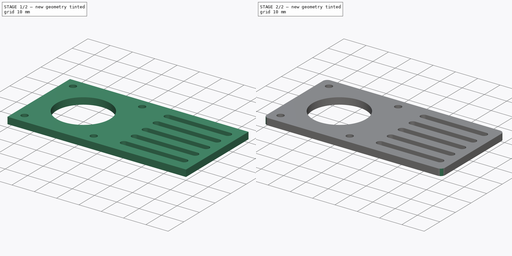
[diagram: build sequence overview — one tinted view per stage of 2, left to right]
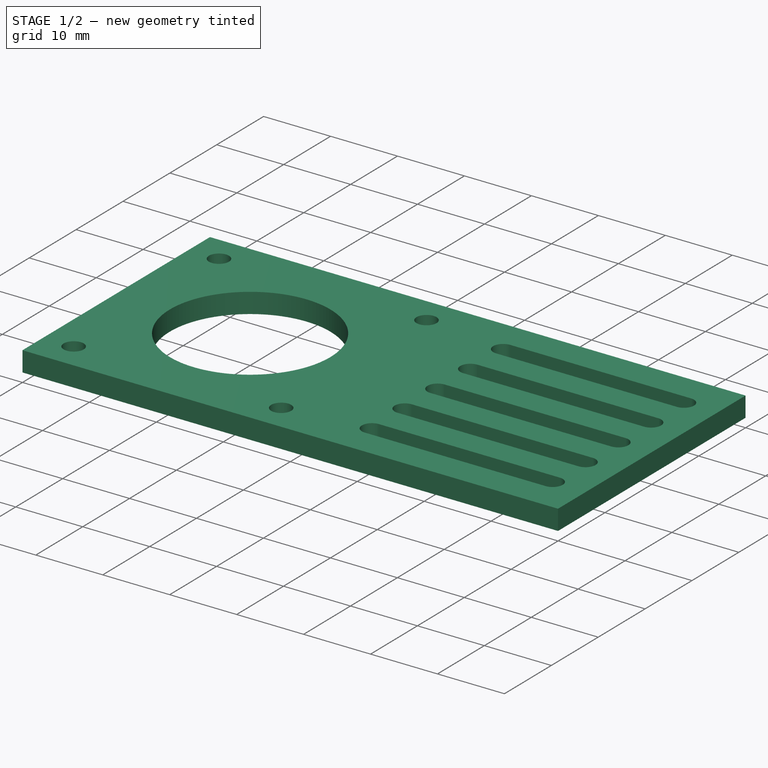
[diagram: stage 1 of 2 — iso view after this stage's code; geometry added in this stage tinted green]
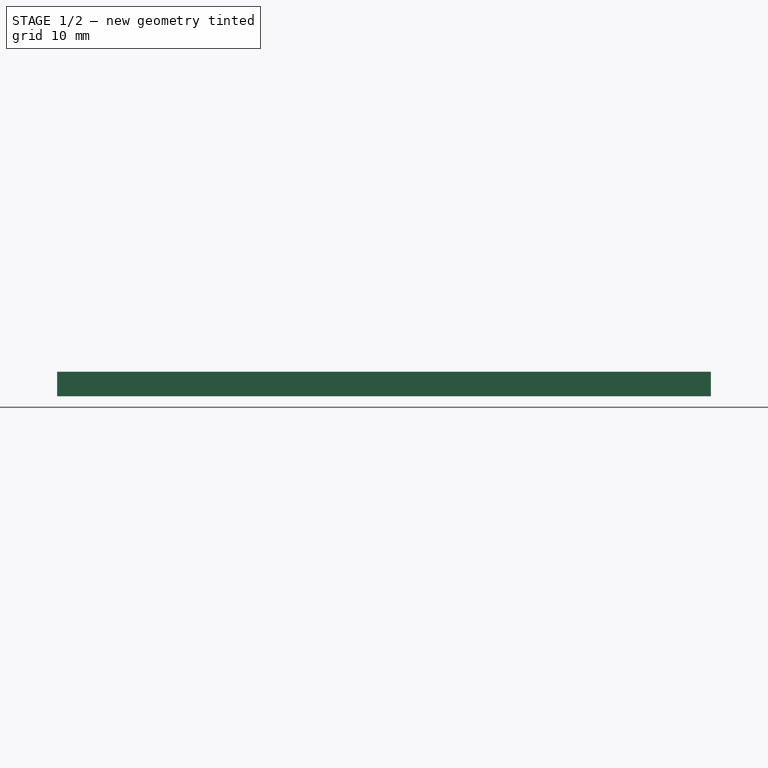
[diagram: stage 1 of 2 — front view after this stage's code; geometry added in this stage tinted green]
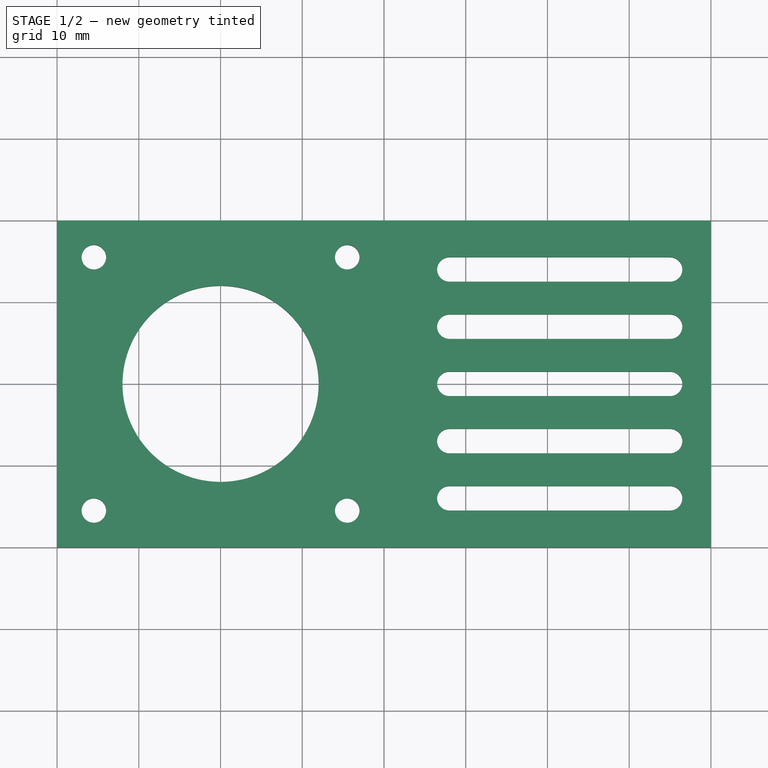
[diagram: stage 1 of 2 — top view after this stage's code; geometry added in this stage tinted green]
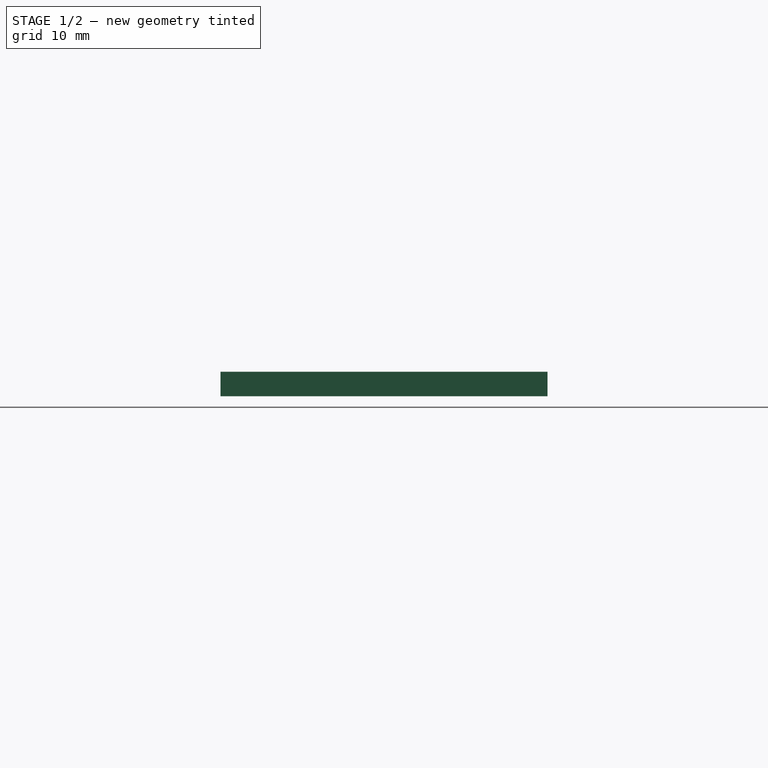
[diagram: stage 1 of 2 — right view after this stage's code; geometry added in this stage tinted green]
FCSTD DOCUMENT  (FreeCAD 1.0R39319 (Git))
Label: Nema17-Mount
License: All rights reserved
LicenseURL: http://en.wikipedia.org/wiki/All_rights_reserved
objects: Sketcher::SketchObject×1, PartDesign::Pad×1, PartDesign::Fillet×1, PartDesign::Body×1
note: 9 computed .brp shape members not serialized (recipe doc carries the construction recipe); baked Part::Feature solids carry a one-line shape summary decoded from their .brp

FEATURE [Sketcher::SketchObject] Sketch
  ArcFitTolerance = 0
  AttachmentSupport = -> [XY_Plane]
  FullyConstrained = true
  MakeInternals = false
  MapMode = 5
  sketch-geometry (29):
    g0: LineSegment StartX=-40 StartY=20 StartZ=0 EndX=40 EndY=20 EndZ=0
    g1: LineSegment StartX=40 StartY=20 StartZ=0 EndX=40 EndY=-20 EndZ=0
    g2: LineSegment StartX=40 StartY=-20 StartZ=0 EndX=-40 EndY=-20 EndZ=0
    g3: LineSegment StartX=-40 StartY=-20 StartZ=0 EndX=-40 EndY=20 EndZ=0
    g4: Circle CenterX=-20 CenterY=0 CenterZ=0 NormalX=0 NormalY=0 NormalZ=1 AngleXU=0 Radius=12
    g5: Circle CenterX=-35.5 CenterY=15.5 CenterZ=0 NormalX=0 NormalY=0 NormalZ=1 AngleXU=0 Radius=1.5
    g6: Circle CenterX=-4.5 CenterY=15.5 CenterZ=0 NormalX=0 NormalY=0 NormalZ=1 AngleXU=0 Radius=1.5
    g7: Circle CenterX=-35.5 CenterY=-15.5 CenterZ=0 NormalX=0 NormalY=0 NormalZ=1 AngleXU=0 Radius=1.5
    g8: Circle CenterX=-4.5 CenterY=-15.5 CenterZ=0 NormalX=0 NormalY=0 NormalZ=1 AngleXU=0 Radius=1.5
    g9: ArcOfCircle CenterX=8 CenterY=0 CenterZ=0 NormalX=0 NormalY=0 NormalZ=1 AngleXU=0 Radius=1.5 StartAngle=1.5708 EndAngle=4.71239
    g10: ArcOfCircle CenterX=35 CenterY=0 CenterZ=0 NormalX=0 NormalY=0 NormalZ=1 AngleXU=0 Radius=1.5 StartAngle=4.71239 EndAngle=7.85398
    g11: LineSegment StartX=8 StartY=-1.5 StartZ=0 EndX=35 EndY=-1.5 EndZ=0
    g12: LineSegment StartX=8 StartY=1.5 StartZ=0 EndX=35 EndY=1.5 EndZ=0
    g13: ArcOfCircle CenterX=8 CenterY=7 CenterZ=0 NormalX=0 NormalY=0 NormalZ=1 AngleXU=0 Radius=1.5 StartAngle=1.5708 EndAngle=4.71239
    g14: ArcOfCircle CenterX=35 CenterY=7 CenterZ=0 NormalX=0 NormalY=0 NormalZ=1 AngleXU=0 Radius=1.5 StartAngle=4.71239 EndAngle=7.85398
    g15: LineSegment StartX=8 StartY=5.5 StartZ=0 EndX=35 EndY=5.5 EndZ=0
    g16: LineSegment StartX=8 StartY=8.5 StartZ=0 EndX=35 EndY=8.5 EndZ=0
    g17: ArcOfCircle CenterX=8 CenterY=14 CenterZ=0 NormalX=0 NormalY=0 NormalZ=1 AngleXU=0 Radius=1.5 StartAngle=1.5708 EndAngle=4.71239
    g18: ArcOfCircle CenterX=35 CenterY=14 CenterZ=0 NormalX=0 NormalY=0 NormalZ=1 AngleXU=0 Radius=1.5 StartAngle=4.71239 EndAngle=7.85398
    g19: LineSegment StartX=8 StartY=12.5 StartZ=0 EndX=35 EndY=12.5 EndZ=0
    g20: LineSegment StartX=8 StartY=15.5 StartZ=0 EndX=35 EndY=15.5 EndZ=0
    g21: ArcOfCircle CenterX=8 CenterY=-7 CenterZ=0 NormalX=0 NormalY=0 NormalZ=1 AngleXU=0 Radius=1.5 StartAngle=1.5708 EndAngle=4.71239
    g22: ArcOfCircle CenterX=35 CenterY=-7 CenterZ=0 NormalX=0 NormalY=0 NormalZ=1 AngleXU=0 Radius=1.5 StartAngle=4.71239 EndAngle=7.85398
    g23: LineSegment StartX=8 StartY=-8.5 StartZ=0 EndX=35 EndY=-8.5 EndZ=0
    g24: LineSegment StartX=8 StartY=-5.5 StartZ=0 EndX=35 EndY=-5.5 EndZ=0
    g25: ArcOfCircle CenterX=8 CenterY=-14 CenterZ=0 NormalX=0 NormalY=0 NormalZ=1 AngleXU=0 Radius=1.5 StartAngle=1.5708 EndAngle=4.71239
    g26: ArcOfCircle CenterX=35 CenterY=-14 CenterZ=0 NormalX=0 NormalY=0 NormalZ=1 AngleXU=0 Radius=1.5 StartAngle=4.71239 EndAngle=7.85398
    g27: LineSegment StartX=8 StartY=-15.5 StartZ=0 EndX=35 EndY=-15.5 EndZ=0
    g28: LineSegment StartX=8 StartY=-12.5 StartZ=0 EndX=35 EndY=-12.5 EndZ=0
  constraints (73):
    c: Coincident(g0,g1)
    c: Coincident(g1,g2)
    c: Coincident(g2,g3)
    c: Coincident(g3,g0)
    c: Horizontal(g2)
    c: Vertical(g1)
    c: Symmetric(g0,g0,g-2)
    c: Symmetric(g0,g2,g-1)
    c: PointOnObject(g4,g-1)
    c: Diameter(g4) = 24
    c: Equal(g6,g5)
    c: Equal(g5,g7)
    c: Equal(g7,g8)
    c: Symmetric(g5,g7,g-1)
    c: Symmetric(g6,g8,g-1)
    c: DistanceX(g5,g6) = 31
    c: Diameter(g6) = 3
    c: DistanceY(g7,g5) = 31
    c: DistanceY(g8,g6) = 31
    c: DistanceY(g3,g3) = 40
    c: DistanceX(g0,g0) = 80
    c: DistanceX(g4,g-1) = 20
    c: DistanceX(g4,g8) = 15.5
    c: Tangent(g9,g12) = 1.5708
    c: Tangent(g9,g11) = -1.5708
    c: Tangent(g11,g10) = -1.5708
    c: Tangent(g12,g10) = 1.5708
    c: Horizontal(g11)
    c: Equal(g9,g10)
    c: Diameter(g10) = 3
    c: PointOnObject(g10,g-1)
    c: DistanceX(g9) = 8
    c: DistanceX(g10) = 35
    c: Tangent(g13,g16) = 1.5708
    c: Tangent(g13,g15) = -1.5708
    c: Tangent(g15,g14) = -1.5708
    c: Tangent(g16,g14) = 1.5708
    c: Horizontal(g15)
    c: Equal(g13,g14)
    c: Equal(g10,g14) = 3
    c: Tangent(g17,g20) = 1.5708
    c: Tangent(g17,g19) = -1.5708
    c: Tangent(g19,g18) = -1.5708
    c: Tangent(g20,g18) = 1.5708
    c: Horizontal(g19)
    c: Equal(g17,g18)
    c: Equal(g10,g18) = 3
    c: DistanceY(g9,g13) = 7
    c: DistanceY(g13,g17) = 7
    c: DistanceX(g13) = 8
    c: DistanceX(g17) = 8
    c: Tangent(g21,g24) = 1.5708
    c: Tangent(g21,g23) = -1.5708
    c: Tangent(g23,g22) = -1.5708
    c: Tangent(g24,g22) = 1.5708
    c: Horizontal(g23)
    c: Equal(g21,g22)
    c: Equal(g10,g22) = 3
    c: Tangent(g25,g28) = 1.5708
    c: Tangent(g25,g27) = -1.5708
    c: Tangent(g27,g26) = -1.5708
    c: Tangent(g28,g26) = 1.5708
    c: Horizontal(g27)
    c: Equal(g25,g26)
    c: Equal(g10,g26) = 3
    c: Equal(g28,g24)
    c: Equal(g24,g12)
    c: Equal(g12,g16)
    c: Equal(g16,g20)
    c: DistanceX(g21) = 8
    c: DistanceX(g25) = 8
    c: DistanceY(g25,g21) = 7
    c: DistanceY(g21,g9) = 7
FEATURE [PartDesign::Pad] Pad
  AllowMultiFace = false
  Direction = (0,0,1)
  Length = 3
  Length2 = 100
  Profile = -> Sketch
  Suppressed = false
  Type = 0
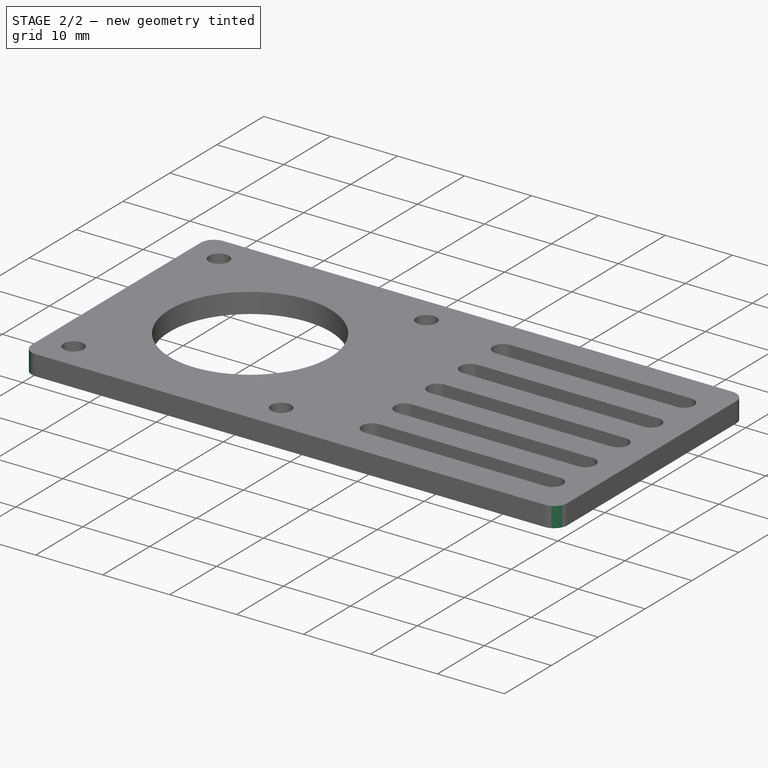
[diagram: stage 2 of 2 — iso view after this stage's code; geometry added in this stage tinted green]
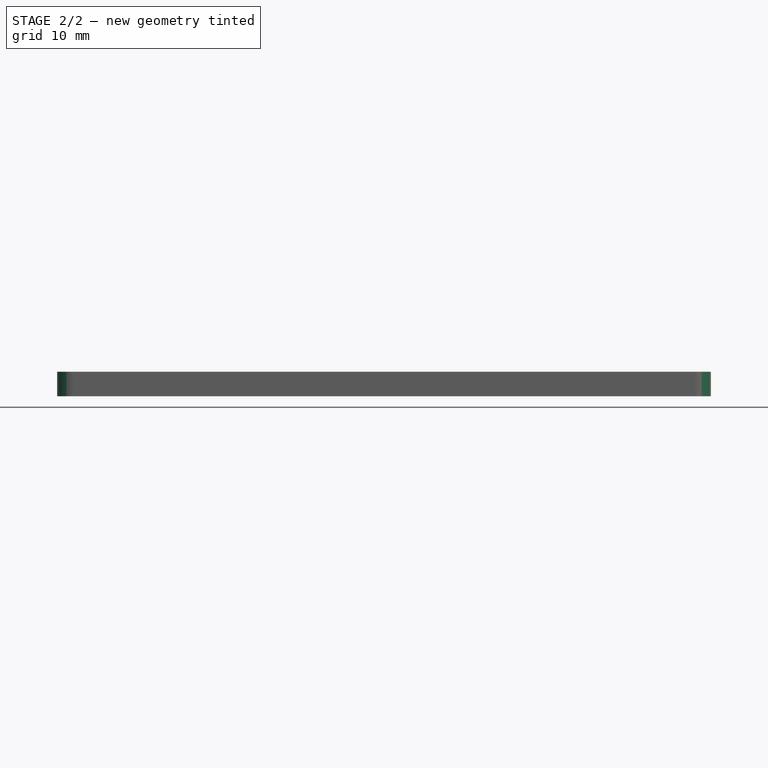
[diagram: stage 2 of 2 — front view after this stage's code; geometry added in this stage tinted green]
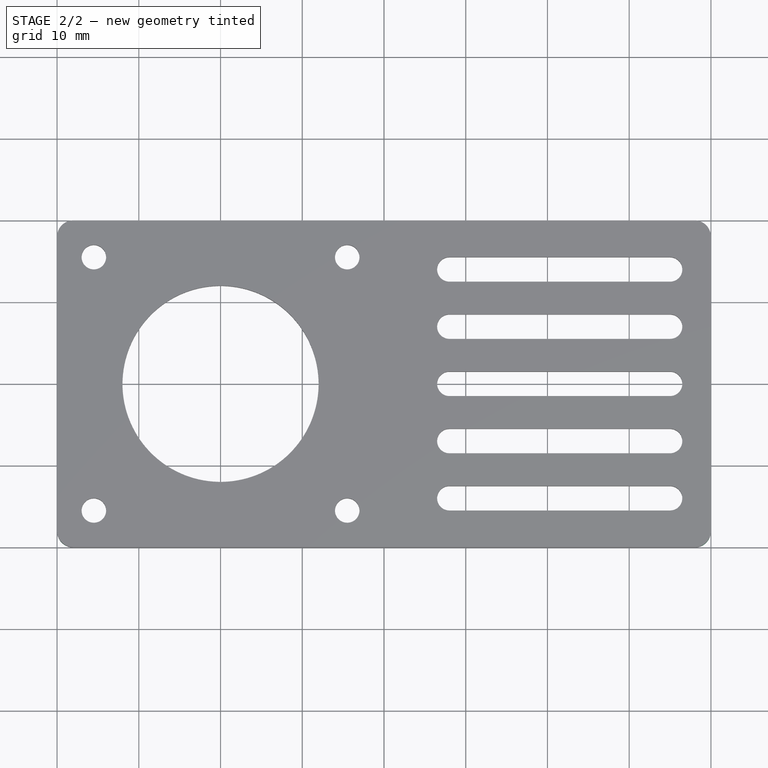
[diagram: stage 2 of 2 — top view after this stage's code; geometry added in this stage tinted green]
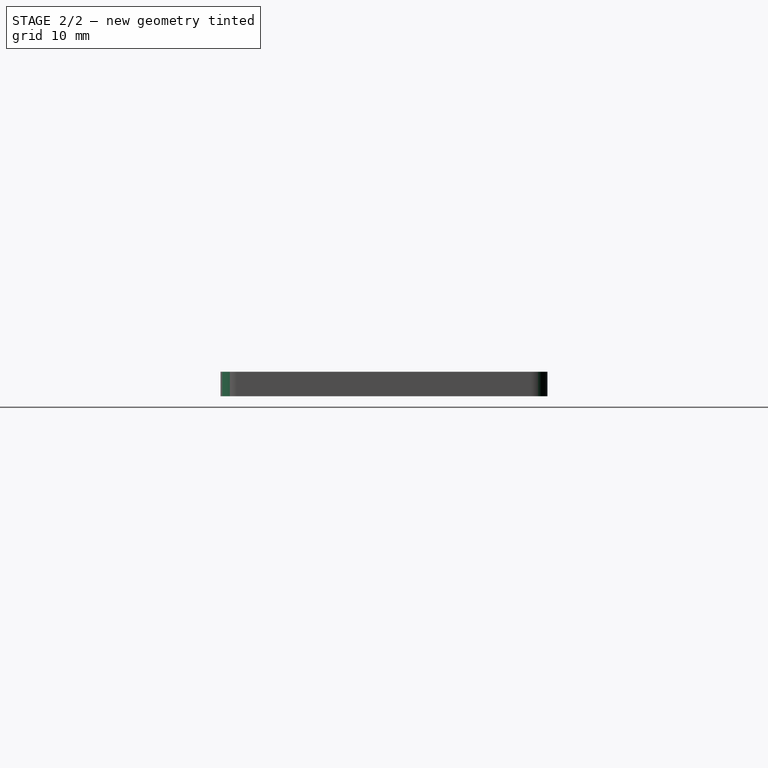
[diagram: stage 2 of 2 — right view after this stage's code; geometry added in this stage tinted green]
FEATURE [PartDesign::Fillet] Fillet
  Base = -> Pad [Edge1,Edge8,Edge5,Edge2]
  BaseFeature = -> Pad
  Radius = 2
  Refine = true
  SupportTransform = false
  Suppressed = false
  UseAllEdges = false
FEATURE [PartDesign::Body] Body
  AllowCompound = false
  Group = -> [Sketch,Pad,Fillet]
  Origin = -> Origin
  Tip = -> Fillet
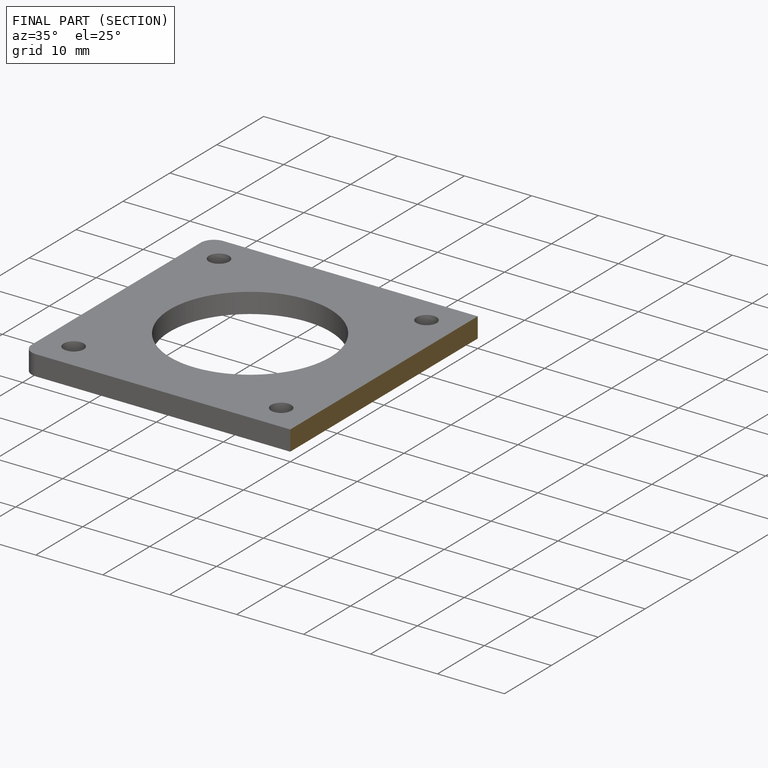
[diagram: finished part — half-section view (interior)]
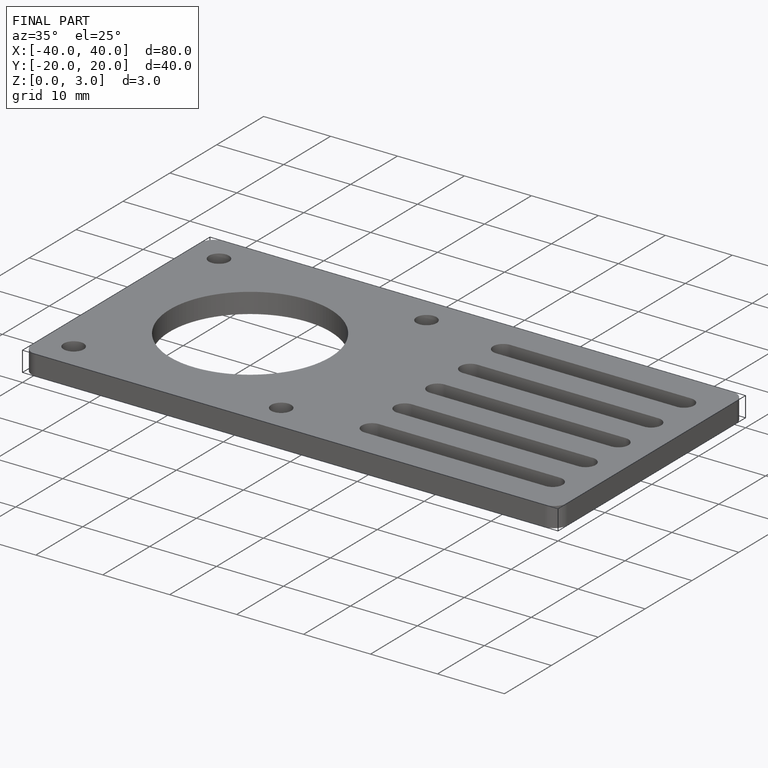
[diagram: finished part — iso view with bounding-box wireframe]
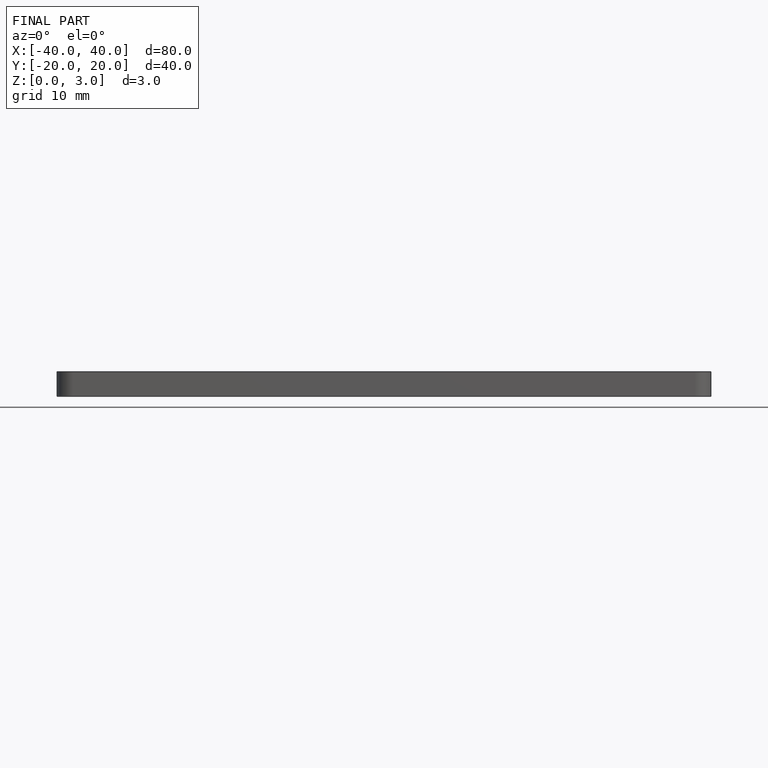
[diagram: finished part — front view with bounding-box wireframe]
